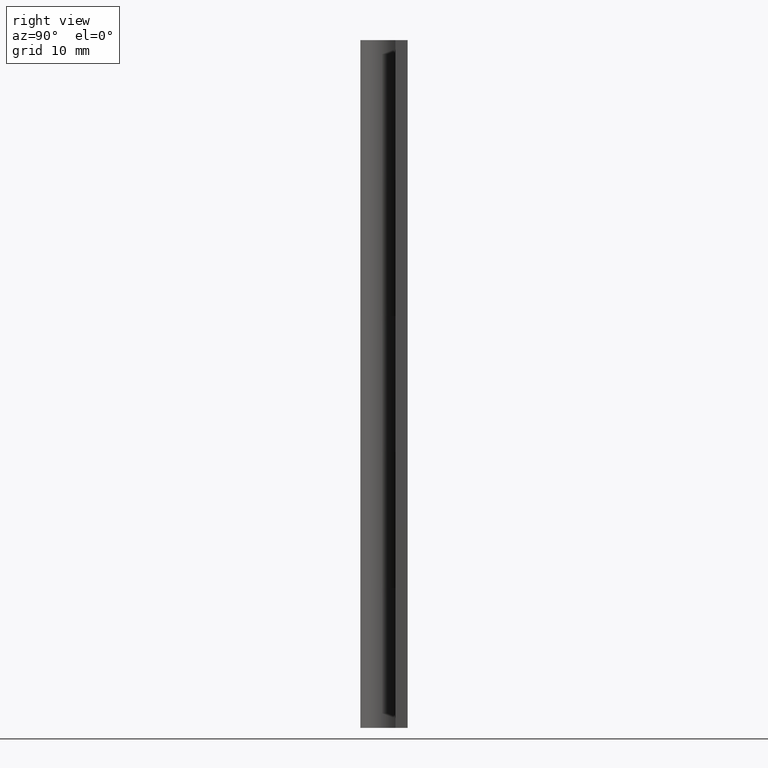
[diagram: clean part render]
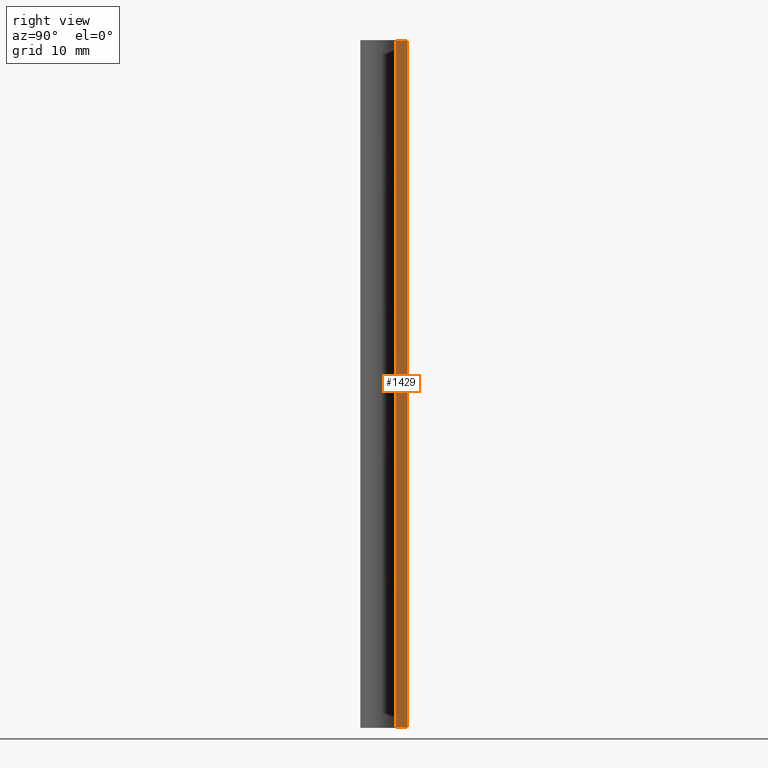
[diagram: same view with one face highlighted and labeled with its STEP entity id]
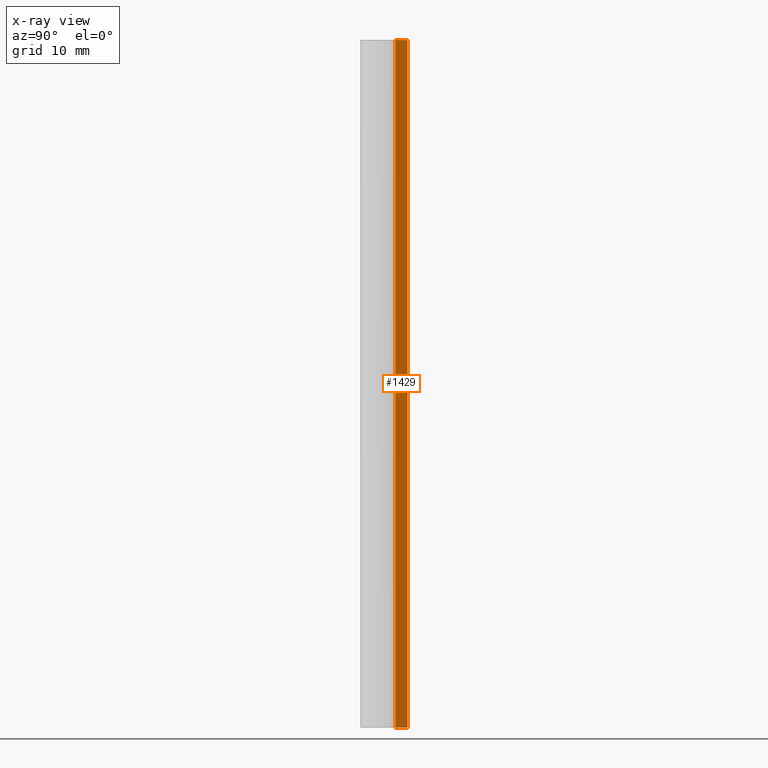
[diagram: x-ray of the same camera — body ghosted, the highlighted face saturated]
A machine part, right view. The second image highlights one B-rep face of the part: STEP entity #1429.
The next image is the same camera in x-ray: the body ghosted, the highlighted face saturated — about 0% of this face is hidden behind the body in this view.
In plain terms, the highlighted face is a freeform B-spline surface patch.
Its self-contained STEP definition (entity closure, byte-faithful):
#1229=CARTESIAN_POINT('',(16.0,1.500000000000000,90.0));
#1230=VERTEX_POINT('',#1229);
#1236=CARTESIAN_POINT('',(16.0,3.099998000000000,90.0));
#1237=VERTEX_POINT('',#1236);
#1238=CARTESIAN_POINT('',(16.0,3.099998000000000,90.0));
#1239=CARTESIAN_POINT('',(16.0,1.500000000000000,90.0));
#1240=QUASI_UNIFORM_CURVE('',1,(#1238,#1239),.UNSPECIFIED.,.F.,.U.);
#1241=EDGE_CURVE('',#1237,#1230,#1240,.T.);
#1279=CARTESIAN_POINT('',(16.0,3.099998000000000,0.0));
#1280=VERTEX_POINT('',#1279);
#1286=CARTESIAN_POINT('',(16.0,1.500000000000000,0.0));
#1287=VERTEX_POINT('',#1286);
#1288=CARTESIAN_POINT('',(16.0,3.099998000000000,0.0));
#1289=CARTESIAN_POINT('',(16.0,1.500000000000000,0.0));
#1290=QUASI_UNIFORM_CURVE('',1,(#1288,#1289),.UNSPECIFIED.,.F.,.U.);
#1291=EDGE_CURVE('',#1280,#1287,#1290,.T.);
#1395=CARTESIAN_POINT('',(16.0,1.500000000000000,0.0));
#1396=CARTESIAN_POINT('',(16.0,1.500000000000000,90.0));
#1397=QUASI_UNIFORM_CURVE('',1,(#1395,#1396),.UNSPECIFIED.,.F.,.U.);
#1398=EDGE_CURVE('',#1287,#1230,#1397,.T.);
#1414=CARTESIAN_POINT('',(16.0,1.420080103001106,-4.495499825562538));
#1415=CARTESIAN_POINT('',(16.0,1.420080103001106,94.495502239550646));
#1416=CARTESIAN_POINT('',(16.0,3.179917939914184,-4.495499825562538));
#1417=CARTESIAN_POINT('',(16.0,3.179917939914184,94.495502239550646));
#1418=B_SPLINE_SURFACE_WITH_KNOTS('',1,1,((#1414,#1416),(#1415,#1417)),.UNSPECIFIED.,.F.,.F.,.U.,(2,2),(2,2),(0.0,98.991002065113179),(0.041708334948495,0.958291687403247),.UNSPECIFIED.);
#1419=ORIENTED_EDGE('',*,*,#1241,.T.);
#1420=ORIENTED_EDGE('',*,*,#1398,.F.);
#1421=ORIENTED_EDGE('',*,*,#1291,.F.);
#1422=CARTESIAN_POINT('',(16.0,3.099998000000000,0.0));
#1423=CARTESIAN_POINT('',(16.0,3.099998000000000,90.0));
#1424=QUASI_UNIFORM_CURVE('',1,(#1422,#1423),.UNSPECIFIED.,.F.,.U.);
#1425=EDGE_CURVE('',#1280,#1237,#1424,.T.);
#1426=ORIENTED_EDGE('',*,*,#1425,.T.);
#1427=EDGE_LOOP('',(#1419,#1420,#1421,#1426));
#1428=FACE_OUTER_BOUND('',#1427,.T.);
#1429=ADVANCED_FACE('',(#1428),#1418,.F.);